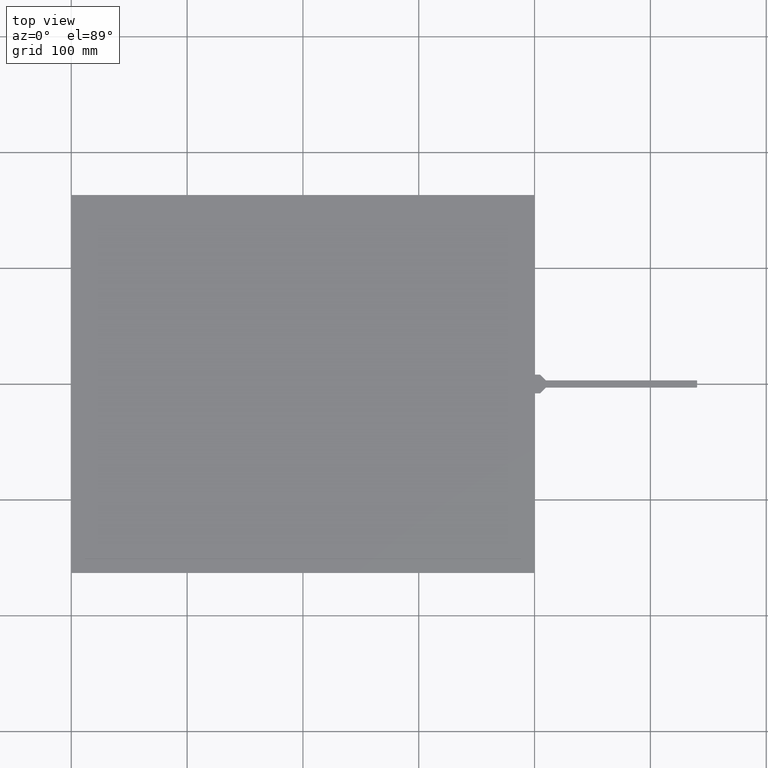
[diagram: clean part render]
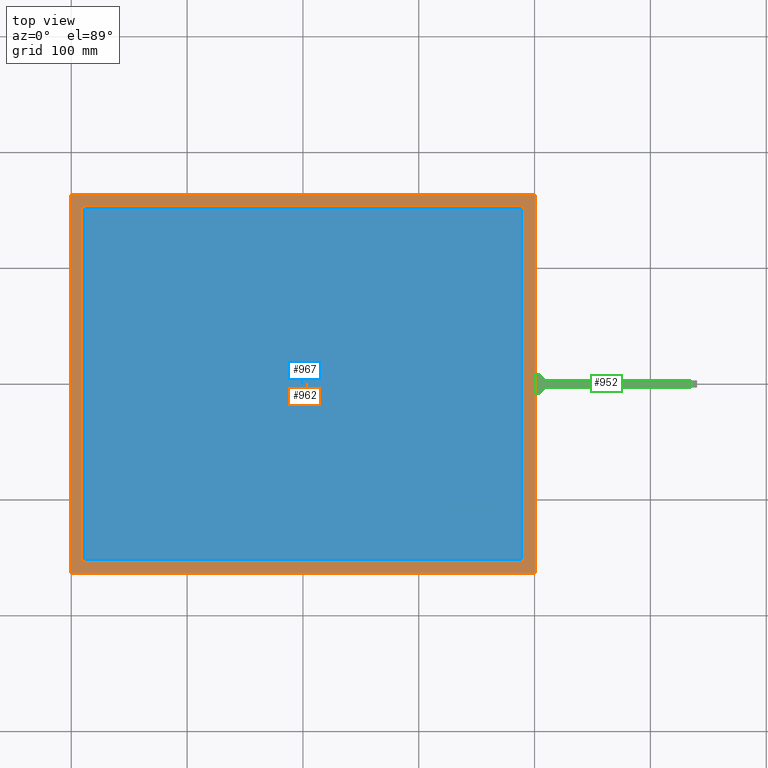
[diagram: same view with three faces highlighted in distinct colors, each labeled with its STEP entity id]
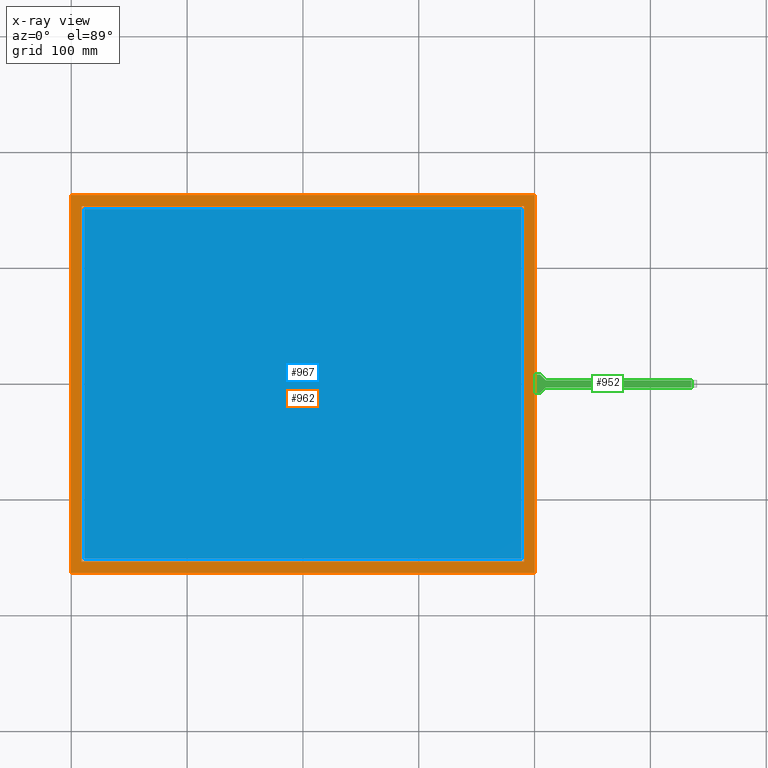
[diagram: x-ray of the same camera — body ghosted, the three highlighted faces saturated]
A machine part, top view with three faces highlighted in distinct colors.
The next image is the same camera in x-ray (body ghosted, the three faces saturated) — at least one of them is partly hidden behind the body in this view.
Their STEP definitions:

[orange] entity #962 — the highlighted planar face has unit normal (0, 0, 1).
#47=FACE_BOUND('',#185,.T.);
#87=PLANE('',#1036);
#135=FACE_OUTER_BOUND('',#184,.T.);
#184=EDGE_LOOP('',(#882,#883,#884,#885));
#185=EDGE_LOOP('',(#886,#887,#888,#889));
#292=LINE('',#1491,#415);
#296=LINE('',#1499,#419);
#299=LINE('',#1505,#422);
#302=LINE('',#1510,#425);
#304=LINE('',#1516,#427);
#305=LINE('',#1518,#428);
#306=LINE('',#1520,#429);
#307=LINE('',#1521,#430);
#415=VECTOR('',#1230,10.);
#419=VECTOR('',#1236,10.);
#422=VECTOR('',#1241,10.);
#425=VECTOR('',#1246,10.);
#427=VECTOR('',#1252,10.);
#428=VECTOR('',#1253,10.);
#429=VECTOR('',#1254,10.);
#430=VECTOR('',#1255,10.);
#515=VERTEX_POINT('',#1489);
#516=VERTEX_POINT('',#1490);
#519=VERTEX_POINT('',#1498);
#521=VERTEX_POINT('',#1504);
#523=VERTEX_POINT('',#1514);
#524=VERTEX_POINT('',#1515);
#525=VERTEX_POINT('',#1517);
#526=VERTEX_POINT('',#1519);
#636=EDGE_CURVE('',#515,#516,#292,.T.);
#640=EDGE_CURVE('',#519,#515,#296,.T.);
#643=EDGE_CURVE('',#521,#519,#299,.T.);
#646=EDGE_CURVE('',#516,#521,#302,.T.);
#648=EDGE_CURVE('',#523,#524,#304,.T.);
#649=EDGE_CURVE('',#524,#525,#305,.T.);
#650=EDGE_CURVE('',#525,#526,#306,.T.);
#651=EDGE_CURVE('',#526,#523,#307,.T.);
#882=ORIENTED_EDGE('',*,*,#648,.T.);
#883=ORIENTED_EDGE('',*,*,#649,.T.);
#884=ORIENTED_EDGE('',*,*,#650,.T.);
#885=ORIENTED_EDGE('',*,*,#651,.T.);
#886=ORIENTED_EDGE('',*,*,#636,.T.);
#887=ORIENTED_EDGE('',*,*,#646,.T.);
#888=ORIENTED_EDGE('',*,*,#643,.T.);
#889=ORIENTED_EDGE('',*,*,#640,.T.);
#962=ADVANCED_FACE('',(#135,#47),#87,.T.);
#1036=AXIS2_PLACEMENT_3D('',#1513,#1250,#1251);
#1230=DIRECTION('',(-1.15836768138262E-16,1.,0.));
#1236=DIRECTION('',(-1.,-1.39540992882973E-16,0.));
#1241=DIRECTION('',(2.31673536276524E-16,-1.,0.));
#1246=DIRECTION('',(1.,4.65136642943244E-17,0.));
#1250=DIRECTION('center_axis',(0.,0.,1.));
#1251=DIRECTION('ref_axis',(1.,0.,0.));
#1252=DIRECTION('',(-1.,0.,0.));
#1253=DIRECTION('',(2.17690789142188E-16,-1.,0.));
#1254=DIRECTION('',(1.,0.,0.));
#1255=DIRECTION('',(-1.08845394571094E-16,1.,0.));
#1489=CARTESIAN_POINT('',(-190.95,-153.35,0.));
#1490=CARTESIAN_POINT('',(-190.95,153.35,0.));
#1491=CARTESIAN_POINT('',(-190.95,-76.675,0.));
#1498=CARTESIAN_POINT('',(190.95,-153.35,0.));
#1499=CARTESIAN_POINT('',(95.475,-153.35,0.));
#1504=CARTESIAN_POINT('',(190.95,153.35,0.));
#1505=CARTESIAN_POINT('',(190.95,76.6750000000001,0.));
#1510=CARTESIAN_POINT('',(-95.4750000000001,153.35,0.));
#1513=CARTESIAN_POINT('Origin',(-3.5527136788005E-14,0.,0.));
#1514=CARTESIAN_POINT('',(200.3,163.2,0.));
#1515=CARTESIAN_POINT('',(-200.3,163.2,0.));
#1516=CARTESIAN_POINT('',(200.3,163.2,0.));
#1517=CARTESIAN_POINT('',(-200.3,-163.2,0.));
#1518=CARTESIAN_POINT('',(-200.3,163.2,0.));
#1519=CARTESIAN_POINT('',(200.3,-163.2,0.));
#1520=CARTESIAN_POINT('',(-200.3,-163.2,0.));
#1521=CARTESIAN_POINT('',(200.3,-163.2,0.));

[blue] entity #967 — the highlighted planar face has unit normal (0, 0, 1).
#92=PLANE('',#1041);
#140=FACE_OUTER_BOUND('',#191,.T.);
#191=EDGE_LOOP('',(#910,#911,#912,#913));
#280=LINE('',#1467,#403);
#284=LINE('',#1475,#407);
#287=LINE('',#1481,#410);
#290=LINE('',#1486,#413);
#403=VECTOR('',#1210,10.);
#407=VECTOR('',#1216,10.);
#410=VECTOR('',#1221,10.);
#413=VECTOR('',#1226,10.);
#507=VERTEX_POINT('',#1465);
#508=VERTEX_POINT('',#1466);
#511=VERTEX_POINT('',#1474);
#513=VERTEX_POINT('',#1480);
#624=EDGE_CURVE('',#507,#508,#280,.T.);
#628=EDGE_CURVE('',#511,#507,#284,.T.);
#631=EDGE_CURVE('',#513,#511,#287,.T.);
#634=EDGE_CURVE('',#508,#513,#290,.T.);
#910=ORIENTED_EDGE('',*,*,#624,.T.);
#911=ORIENTED_EDGE('',*,*,#634,.T.);
#912=ORIENTED_EDGE('',*,*,#631,.T.);
#913=ORIENTED_EDGE('',*,*,#628,.T.);
#967=ADVANCED_FACE('',(#140),#92,.T.);
#1041=AXIS2_PLACEMENT_3D('',#1538,#1272,#1273);
#1210=DIRECTION('',(1.,0.,0.));
#1216=DIRECTION('',(0.,-1.,0.));
#1221=DIRECTION('',(-1.,0.,0.));
#1226=DIRECTION('',(0.,1.,0.));
#1272=DIRECTION('center_axis',(0.,0.,1.));
#1273=DIRECTION('ref_axis',(1.,0.,0.));
#1465=CARTESIAN_POINT('',(-188.66,-151.03,0.));
#1466=CARTESIAN_POINT('',(188.66,-151.03,0.));
#1467=CARTESIAN_POINT('',(-94.33,-151.03,0.));
#1474=CARTESIAN_POINT('',(-188.66,151.03,0.));
#1475=CARTESIAN_POINT('',(-188.66,75.515,0.));
#1480=CARTESIAN_POINT('',(188.66,151.03,0.));
#1481=CARTESIAN_POINT('',(94.33,151.03,0.));
#1486=CARTESIAN_POINT('',(188.66,-75.515,0.));
#1538=CARTESIAN_POINT('Origin',(-3.5527136788005E-14,0.,0.));

[green] entity #952 — the highlighted planar face has unit normal (0, 0, 1).
#77=PLANE('',#1026);
#125=FACE_OUTER_BOUND('',#173,.T.);
#173=EDGE_LOOP('',(#833,#834,#835,#836,#837,#838,#839,#840,#841));
#203=LINE('',#1304,#326);
#232=LINE('',#1371,#355);
#268=LINE('',#1441,#391);
#273=LINE('',#1451,#396);
#274=LINE('',#1455,#397);
#277=LINE('',#1459,#400);
#278=LINE('',#1461,#401);
#279=LINE('',#1463,#402);
#326=VECTOR('',#1065,10.);
#355=VECTOR('',#1112,10.);
#391=VECTOR('',#1182,10.);
#396=VECTOR('',#1193,10.);
#397=VECTOR('',#1196,10.);
#400=VECTOR('',#1201,10.);
#401=VECTOR('',#1204,10.);
#402=VECTOR('',#1207,10.);
#440=CIRCLE('',#991,1.);
#447=VERTEX_POINT('',#1281);
#448=VERTEX_POINT('',#1283);
#456=VERTEX_POINT('',#1303);
#484=VERTEX_POINT('',#1368);
#485=VERTEX_POINT('',#1370);
#502=VERTEX_POINT('',#1439);
#504=VERTEX_POINT('',#1449);
#505=VERTEX_POINT('',#1453);
#506=VERTEX_POINT('',#1454);
#533=EDGE_CURVE('',#447,#448,#440,.T.);
#543=EDGE_CURVE('',#456,#448,#203,.T.);
#576=EDGE_CURVE('',#485,#484,#232,.T.);
#612=EDGE_CURVE('',#484,#502,#268,.T.);
#617=EDGE_CURVE('',#447,#504,#273,.T.);
#618=EDGE_CURVE('',#505,#506,#274,.T.);
#621=EDGE_CURVE('',#506,#485,#277,.T.);
#622=EDGE_CURVE('',#502,#456,#278,.T.);
#623=EDGE_CURVE('',#505,#504,#279,.T.);
#833=ORIENTED_EDGE('',*,*,#533,.F.);
#834=ORIENTED_EDGE('',*,*,#617,.T.);
#835=ORIENTED_EDGE('',*,*,#623,.F.);
#836=ORIENTED_EDGE('',*,*,#618,.T.);
#837=ORIENTED_EDGE('',*,*,#621,.T.);
#838=ORIENTED_EDGE('',*,*,#576,.T.);
#839=ORIENTED_EDGE('',*,*,#612,.T.);
#840=ORIENTED_EDGE('',*,*,#622,.T.);
#841=ORIENTED_EDGE('',*,*,#543,.T.);
#952=ADVANCED_FACE('',(#125),#77,.T.);
#991=AXIS2_PLACEMENT_3D('',#1284,#1050,#1051);
#1026=AXIS2_PLACEMENT_3D('',#1462,#1205,#1206);
#1050=DIRECTION('center_axis',(0.,0.,-1.));
#1051=DIRECTION('ref_axis',(0.382683432365074,0.923879532511293,0.));
#1065=DIRECTION('',(-0.707106781186548,0.707106781186547,0.));
#1112=DIRECTION('',(1.,0.,0.));
#1182=DIRECTION('',(0.,1.,0.));
#1193=DIRECTION('',(-1.,2.52898183285913E-16,0.));
#1196=DIRECTION('',(1.,0.,0.));
#1201=DIRECTION('',(0.707106781186548,0.707106781186547,0.));
#1204=DIRECTION('',(-1.,0.,0.));
#1205=DIRECTION('center_axis',(0.,0.,1.));
#1206=DIRECTION('ref_axis',(1.,0.,0.));
#1207=DIRECTION('',(-1.08845394571094E-16,1.,0.));
#1281=CARTESIAN_POINT('',(204.275786437627,8.13499999999999,-0.2));
#1283=CARTESIAN_POINT('',(204.982893218813,7.84210678118653,-0.2));
#1284=CARTESIAN_POINT('Origin',(204.275786437627,7.13499999999999,-0.2));
#1303=CARTESIAN_POINT('',(209.7,3.12499999999999,-0.2));
#1304=CARTESIAN_POINT('',(209.7,3.12499999999999,-0.2));
#1368=CARTESIAN_POINT('',(335.3,-3.12500000000001,-0.2));
#1370=CARTESIAN_POINT('',(209.7,-3.12500000000001,-0.2));
#1371=CARTESIAN_POINT('',(209.7,-3.12500000000001,-0.2));
#1439=CARTESIAN_POINT('',(335.3,3.12499999999999,-0.2));
#1441=CARTESIAN_POINT('',(335.3,-1.56250000000001,-0.2));
#1449=CARTESIAN_POINT('',(200.3,8.13499999999999,-0.2));
#1451=CARTESIAN_POINT('',(204.69,8.13499999999999,-0.2));
#1453=CARTESIAN_POINT('',(200.3,-8.13500000000001,-0.2));
#1454=CARTESIAN_POINT('',(204.69,-8.13500000000001,-0.2));
#1455=CARTESIAN_POINT('',(200.3,-8.13500000000001,-0.2));
#1459=CARTESIAN_POINT('',(204.69,-8.13500000000001,-0.2));
#1461=CARTESIAN_POINT('',(340.3,3.12499999999999,-0.2));
#1462=CARTESIAN_POINT('Origin',(270.3,-7.21644966006352E-15,-0.2));
#1463=CARTESIAN_POINT('',(200.3,81.6,-0.2));